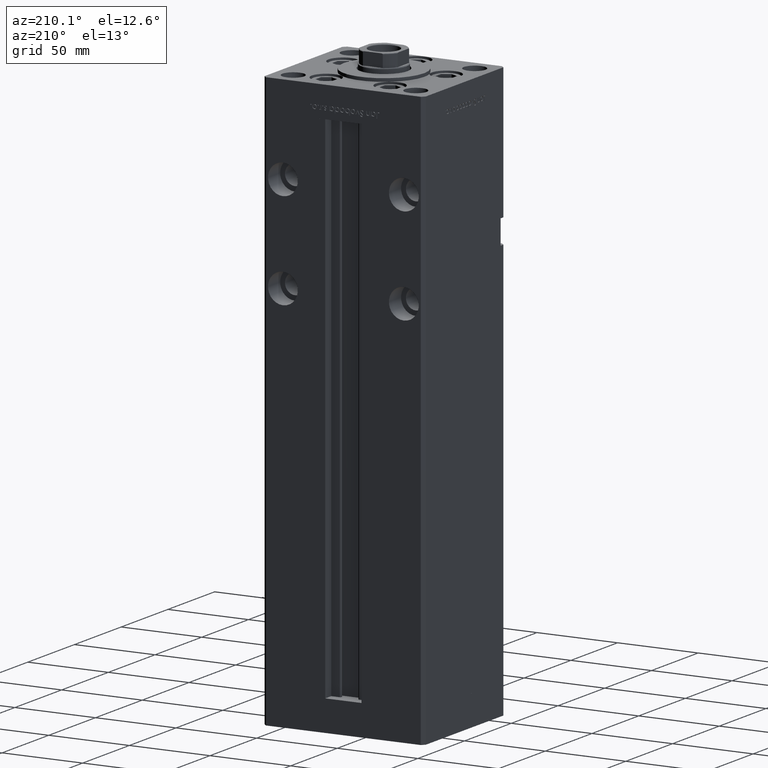
[diagram: clean part render]
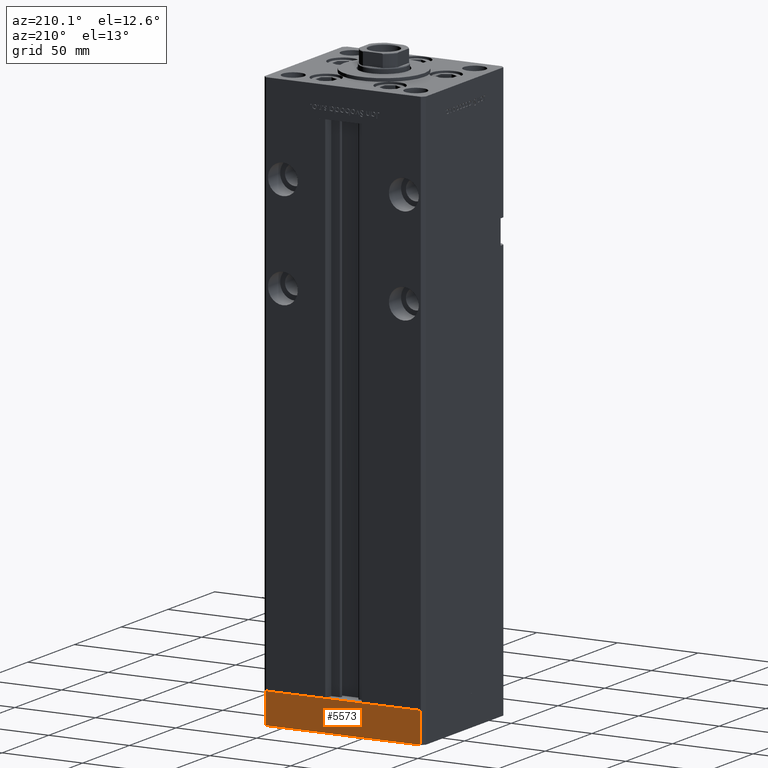
[diagram: same view with one face highlighted and labeled with its STEP entity id]
A machine part, auxiliary view. The second image highlights one B-rep face of the part: STEP entity #5573.
In plain terms, the highlighted planar face has unit normal (-0, 1, 0).
Its self-contained STEP definition (entity closure, byte-faithful):
#1383 = PLANE ( 'NONE',  #30890 ) ;
#2167 = VERTEX_POINT ( 'NONE', #36271 ) ;
#4244 = CARTESIAN_POINT ( 'NONE',  ( -48.00000000000000711, 43.49999999999996447, -19.00000000000000000 ) ) ;
#5162 = DIRECTION ( 'NONE',  ( -3.614007241618350743E-16, 1.000000000000000000, 0.000000000000000000 ) ) ;
#5538 = VERTEX_POINT ( 'NONE', #13756 ) ;
#5573 = ADVANCED_FACE ( 'NONE', ( #9460 ), #1383, .T. ) ;
#5997 = VECTOR ( 'NONE', #24771, 1000.000000000000000 ) ;
#8541 = CARTESIAN_POINT ( 'NONE',  ( 47.99999999999990763, 43.50000000000000000, -19.00000000000000000 ) ) ;
#9460 = FACE_OUTER_BOUND ( 'NONE', #27481, .T. ) ;
#9746 = EDGE_CURVE ( 'NONE', #40107, #2167, #20467, .T. ) ;
#10515 = VECTOR ( 'NONE', #44545, 1000.000000000000000 ) ;
#11372 = CARTESIAN_POINT ( 'NONE',  ( 47.99999999999990763, 43.50000000000000000, -19.00000000000000000 ) ) ;
#13274 = VECTOR ( 'NONE', #43904, 1000.000000000000000 ) ;
#13300 = VERTEX_POINT ( 'NONE', #47642 ) ;
#13756 = CARTESIAN_POINT ( 'NONE',  ( 47.99999999999990763, 43.50000000000000000, 0.000000000000000000 ) ) ;
#15661 = ORIENTED_EDGE ( 'NONE', *, *, #29231, .F. ) ;
#20009 = ORIENTED_EDGE ( 'NONE', *, *, #23733, .F. ) ;
#20343 = DIRECTION ( 'NONE',  ( 0.000000000000000000, 0.000000000000000000, 1.000000000000000000 ) ) ;
#20467 = LINE ( 'NONE', #11372, #5997 ) ;
#23733 = EDGE_CURVE ( 'NONE', #5538, #13300, #35824, .T. ) ;
#24771 = DIRECTION ( 'NONE',  ( -1.000000000000000000, -3.614007241618350743E-16, 0.000000000000000000 ) ) ;
#27481 = EDGE_LOOP ( 'NONE', ( #20009, #15661, #28896, #39555 ) ) ;
#28693 = LINE ( 'NONE', #8541, #37078 ) ;
#28896 = ORIENTED_EDGE ( 'NONE', *, *, #9746, .T. ) ;
#29226 = EDGE_CURVE ( 'NONE', #2167, #13300, #32456, .T. ) ;
#29231 = EDGE_CURVE ( 'NONE', #40107, #5538, #28693, .T. ) ;
#30890 = AXIS2_PLACEMENT_3D ( 'NONE', #42232, #5162, #34692 ) ;
#32456 = LINE ( 'NONE', #4244, #10515 ) ;
#34692 = DIRECTION ( 'NONE',  ( -1.000000000000000000, -3.614007241618350743E-16, 0.000000000000000000 ) ) ;
#35824 = LINE ( 'NONE', #43384, #13274 ) ;
#36271 = CARTESIAN_POINT ( 'NONE',  ( -48.00000000000000711, 43.49999999999996447, -19.00000000000000000 ) ) ;
#37078 = VECTOR ( 'NONE', #20343, 1000.000000000000000 ) ;
#39555 = ORIENTED_EDGE ( 'NONE', *, *, #29226, .T. ) ;
#40107 = VERTEX_POINT ( 'NONE', #48191 ) ;
#42232 = CARTESIAN_POINT ( 'NONE',  ( 47.99999999999990763, 43.50000000000000000, -19.00000000000000000 ) ) ;
#43384 = CARTESIAN_POINT ( 'NONE',  ( 47.99999999999990763, 43.50000000000000000, 0.000000000000000000 ) ) ;
#43904 = DIRECTION ( 'NONE',  ( -1.000000000000000000, -3.614007241618350743E-16, 0.000000000000000000 ) ) ;
#44545 = DIRECTION ( 'NONE',  ( 0.000000000000000000, 0.000000000000000000, 1.000000000000000000 ) ) ;
#47642 = CARTESIAN_POINT ( 'NONE',  ( -48.00000000000000711, 43.49999999999996447, 0.000000000000000000 ) ) ;
#48191 = CARTESIAN_POINT ( 'NONE',  ( 47.99999999999990763, 43.50000000000000000, -19.00000000000000000 ) ) ;